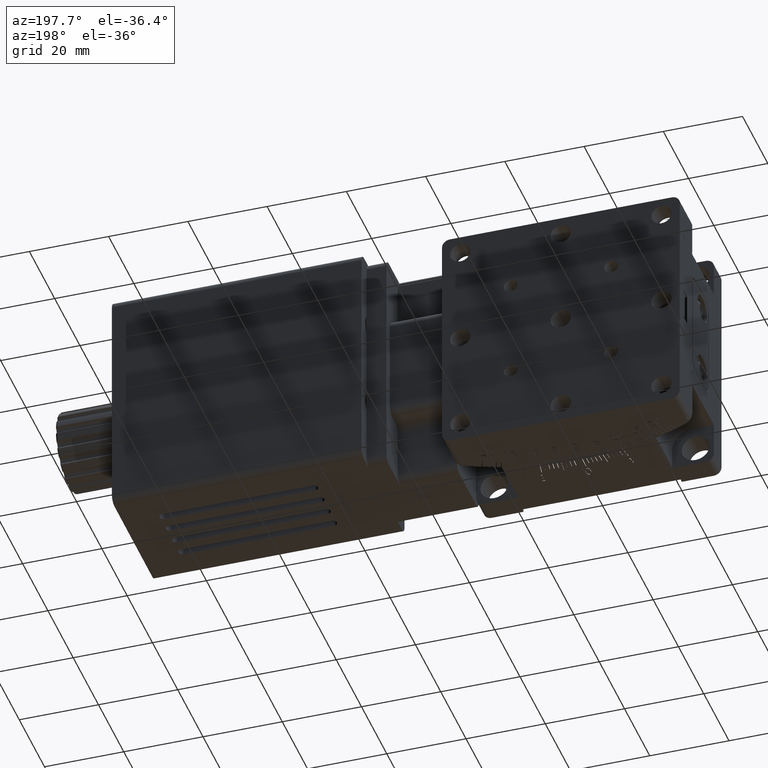
[diagram: clean part render]
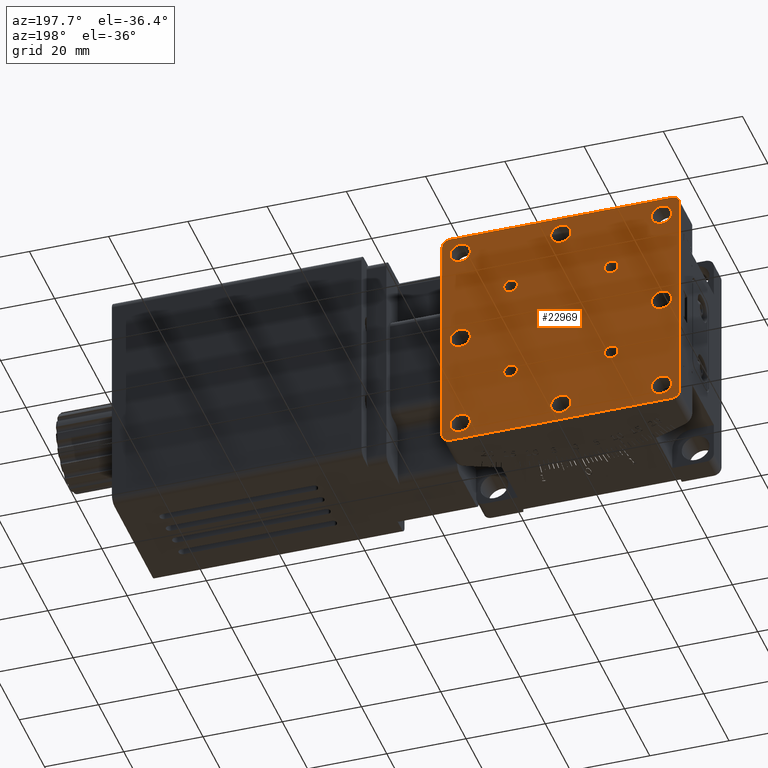
[diagram: same view with one face highlighted and labeled with its STEP entity id]
A machine part, auxiliary view. The second image highlights one B-rep face of the part: STEP entity #22969.
In plain terms, the highlighted planar face has unit normal (0, 1, 0).
Its self-contained STEP definition (entity closure, byte-faithful):
#88 = EDGE_CURVE ( 'NONE', #29572, #2857, #1983, .T. ) ;
#412 = FACE_BOUND ( 'NONE', #26557, .T. ) ;
#419 = CIRCLE ( 'NONE', #34659, 1.727199999999999800 ) ;
#421 = VECTOR ( 'NONE', #31617, 1000.000000000000000 ) ;
#460 = VERTEX_POINT ( 'NONE', #13635 ) ;
#563 = AXIS2_PLACEMENT_3D ( 'NONE', #6026, #26235, #8960 ) ;
#612 = ORIENTED_EDGE ( 'NONE', *, *, #15574, .T. ) ;
#620 = DIRECTION ( 'NONE',  ( 0.0000000000000000000, 0.0000000000000000000, -1.000000000000000000 ) ) ;
#675 = CIRCLE ( 'NONE', #37440, 2.552700000000001500 ) ;
#716 = VERTEX_POINT ( 'NONE', #23742 ) ;
#860 = ORIENTED_EDGE ( 'NONE', *, *, #2494, .F. ) ;
#1067 = CARTESIAN_POINT ( 'NONE',  ( -3.538835890992686500E-014, 32.99999999999978000, -2.552699999999992200 ) ) ;
#1359 = VERTEX_POINT ( 'NONE', #28043 ) ;
#1363 = DIRECTION ( 'NONE',  ( 1.110223024625156300E-016, 1.000000000000000000, 0.0000000000000000000 ) ) ;
#1371 = VERTEX_POINT ( 'NONE', #20749 ) ;
#1500 = VERTEX_POINT ( 'NONE', #32471 ) ;
#1536 = ORIENTED_EDGE ( 'NONE', *, *, #7184, .F. ) ;
#1561 = CIRCLE ( 'NONE', #19196, 1.727199999999999800 ) ;
#1687 = VERTEX_POINT ( 'NONE', #2991 ) ;
#1699 = EDGE_LOOP ( 'NONE', ( #33732, #21307 ) ) ;
#1783 = CARTESIAN_POINT ( 'NONE',  ( -3.538835890992686500E-014, 32.99999999999978000, -25.39999999999999900 ) ) ;
#1797 = FACE_BOUND ( 'NONE', #18883, .T. ) ;
#1808 = EDGE_LOOP ( 'NONE', ( #31700, #860 ) ) ;
#1814 = EDGE_CURVE ( 'NONE', #26791, #29639, #29000, .T. ) ;
#1983 = CIRCLE ( 'NONE', #20546, 1.727199999999999800 ) ;
#2011 = CARTESIAN_POINT ( 'NONE',  ( -25.40000000000003800, 32.99999999999978000, -27.95270000000000000 ) ) ;
#2206 = DIRECTION ( 'NONE',  ( 1.110223024625156300E-016, 1.000000000000000000, 0.0000000000000000000 ) ) ;
#2212 = VERTEX_POINT ( 'NONE', #12634 ) ;
#2277 = CIRCLE ( 'NONE', #3326, 1.727199999999999800 ) ;
#2347 = EDGE_CURVE ( 'NONE', #20053, #37353, #19977, .T. ) ;
#2449 = CARTESIAN_POINT ( 'NONE',  ( -3.538835890992686500E-014, 32.99999999999978000, 22.84730000000001500 ) ) ;
#2494 = EDGE_CURVE ( 'NONE', #33411, #4729, #2277, .T. ) ;
#2570 = EDGE_LOOP ( 'NONE', ( #33635, #31490 ) ) ;
#2857 = VERTEX_POINT ( 'NONE', #33489 ) ;
#2991 = CARTESIAN_POINT ( 'NONE',  ( -25.40000000000003800, 32.99999999999978000, 2.552700000000008600 ) ) ;
#3056 = CIRCLE ( 'NONE', #19877, 1.727199999999999800 ) ;
#3326 = AXIS2_PLACEMENT_3D ( 'NONE', #26836, #9425, #29617 ) ;
#3488 = CIRCLE ( 'NONE', #4226, 2.000000000000001800 ) ;
#3609 = CARTESIAN_POINT ( 'NONE',  ( -25.40000000000003800, 32.99999999999978000, -22.84729999999999700 ) ) ;
#3835 = VERTEX_POINT ( 'NONE', #12062 ) ;
#3933 = DIRECTION ( 'NONE',  ( 0.0000000000000000000, 0.0000000000000000000, -1.000000000000000000 ) ) ;
#4047 = LINE ( 'NONE', #14054, #421 ) ;
#4226 = AXIS2_PLACEMENT_3D ( 'NONE', #21222, #15535, #32941 ) ;
#4703 = EDGE_CURVE ( 'NONE', #24458, #716, #29130, .T. ) ;
#4709 = AXIS2_PLACEMENT_3D ( 'NONE', #27274, #1363, #24268 ) ;
#4729 = VERTEX_POINT ( 'NONE', #30403 ) ;
#4837 = CARTESIAN_POINT ( 'NONE',  ( 25.39999999999995900, 32.99999999999978000, 25.40000000000000600 ) ) ;
#4996 = CARTESIAN_POINT ( 'NONE',  ( -25.40000000000003800, 32.99999999999978000, 6.938893903907226800E-015 ) ) ;
#5090 = ORIENTED_EDGE ( 'NONE', *, *, #8091, .F. ) ;
#5527 = DIRECTION ( 'NONE',  ( 0.0000000000000000000, 0.0000000000000000000, -1.000000000000000000 ) ) ;
#5559 = ORIENTED_EDGE ( 'NONE', *, *, #29957, .T. ) ;
#5717 = ORIENTED_EDGE ( 'NONE', *, *, #35619, .F. ) ;
#6026 = CARTESIAN_POINT ( 'NONE',  ( -25.40000000000003800, 32.99999999999978000, -25.39999999999999900 ) ) ;
#6261 = CIRCLE ( 'NONE', #22372, 2.000000000000001800 ) ;
#6339 = DIRECTION ( 'NONE',  ( 1.110223024625156300E-016, 1.000000000000000000, 0.0000000000000000000 ) ) ;
#6358 = VERTEX_POINT ( 'NONE', #35126 ) ;
#6486 = CARTESIAN_POINT ( 'NONE',  ( -30.00000000000003200, 32.99999999999978000, -27.99999999999998900 ) ) ;
#7184 = EDGE_CURVE ( 'NONE', #15065, #11650, #9143, .T. ) ;
#7203 = CIRCLE ( 'NONE', #33135, 2.552700000000001500 ) ;
#7205 = DIRECTION ( 'NONE',  ( 0.0000000000000000000, 0.0000000000000000000, -1.000000000000000000 ) ) ;
#7323 = DIRECTION ( 'NONE',  ( -1.000000000000000000, 1.110223024625156300E-016, 1.156482317317871500E-016 ) ) ;
#7349 = CIRCLE ( 'NONE', #14636, 2.552700000000001500 ) ;
#7471 = DIRECTION ( 'NONE',  ( 1.110223024625156300E-016, 1.000000000000000000, 0.0000000000000000000 ) ) ;
#7694 = FACE_BOUND ( 'NONE', #1808, .T. ) ;
#7840 = DIRECTION ( 'NONE',  ( 0.0000000000000000000, 0.0000000000000000000, -1.000000000000000000 ) ) ;
#7842 = EDGE_CURVE ( 'NONE', #19292, #1371, #35757, .T. ) ;
#8022 = AXIS2_PLACEMENT_3D ( 'NONE', #31193, #33608, #36649 ) ;
#8091 = EDGE_CURVE ( 'NONE', #16898, #18387, #36672, .T. ) ;
#8219 = CARTESIAN_POINT ( 'NONE',  ( -25.40000000000003800, 32.99999999999978000, -25.39999999999999900 ) ) ;
#8552 = AXIS2_PLACEMENT_3D ( 'NONE', #16855, #31376, #37186 ) ;
#8586 = FACE_BOUND ( 'NONE', #15968, .T. ) ;
#8761 = DIRECTION ( 'NONE',  ( 1.110223024625156300E-016, 1.000000000000000000, 0.0000000000000000000 ) ) ;
#8819 = EDGE_CURVE ( 'NONE', #35889, #1500, #35070, .T. ) ;
#8960 = DIRECTION ( 'NONE',  ( 0.0000000000000000000, 0.0000000000000000000, -1.000000000000000000 ) ) ;
#9059 = ORIENTED_EDGE ( 'NONE', *, *, #2347, .F. ) ;
#9143 = CIRCLE ( 'NONE', #32523, 2.552700000000001500 ) ;
#9380 = DIRECTION ( 'NONE',  ( 1.110223024625156300E-016, 1.000000000000000000, 0.0000000000000000000 ) ) ;
#9389 = EDGE_LOOP ( 'NONE', ( #5717, #22768 ) ) ;
#9425 = DIRECTION ( 'NONE',  ( 1.110223024625156300E-016, 1.000000000000000000, 0.0000000000000000000 ) ) ;
#9792 = DIRECTION ( 'NONE',  ( 1.110223024625156300E-016, 1.000000000000000000, 0.0000000000000000000 ) ) ;
#10296 = ORIENTED_EDGE ( 'NONE', *, *, #28924, .F. ) ;
#10423 = CARTESIAN_POINT ( 'NONE',  ( -3.538835890992686500E-014, 32.99999999999978000, 6.938893903907226800E-015 ) ) ;
#10512 = VERTEX_POINT ( 'NONE', #27038 ) ;
#10600 = LINE ( 'NONE', #33589, #19639 ) ;
#10678 = EDGE_LOOP ( 'NONE', ( #14198, #18447 ) ) ;
#10885 = CARTESIAN_POINT ( 'NONE',  ( 25.39999999999995900, 32.99999999999978000, 22.84730000000000400 ) ) ;
#10890 = DIRECTION ( 'NONE',  ( 1.110223024625156300E-016, 1.000000000000000000, 0.0000000000000000000 ) ) ;
#10894 = CARTESIAN_POINT ( 'NONE',  ( 12.69999999999997400, 32.99999999999978000, -14.42719999999999900 ) ) ;
#10910 = DIRECTION ( 'NONE',  ( 0.0000000000000000000, 0.0000000000000000000, -1.000000000000000000 ) ) ;
#11011 = CARTESIAN_POINT ( 'NONE',  ( -3.538835890992686500E-014, 32.99999999999978000, 25.40000000000001300 ) ) ;
#11214 = EDGE_CURVE ( 'NONE', #1500, #35889, #7349, .T. ) ;
#11337 = AXIS2_PLACEMENT_3D ( 'NONE', #14554, #8761, #14311 ) ;
#11627 = CIRCLE ( 'NONE', #8022, 2.552700000000001500 ) ;
#11650 = VERTEX_POINT ( 'NONE', #18210 ) ;
#11757 = ORIENTED_EDGE ( 'NONE', *, *, #26444, .F. ) ;
#11856 = EDGE_CURVE ( 'NONE', #37353, #20053, #21343, .T. ) ;
#11888 = CARTESIAN_POINT ( 'NONE',  ( 25.39999999999995900, 32.99999999999978000, 6.938893903907226800E-015 ) ) ;
#12062 = CARTESIAN_POINT ( 'NONE',  ( -25.40000000000003800, 32.99999999999978000, -2.552699999999994400 ) ) ;
#12091 = DIRECTION ( 'NONE',  ( 0.0000000000000000000, 0.0000000000000000000, -1.000000000000000000 ) ) ;
#12157 = DIRECTION ( 'NONE',  ( 0.0000000000000000000, 0.0000000000000000000, -1.000000000000000000 ) ) ;
#12270 = AXIS2_PLACEMENT_3D ( 'NONE', #29473, #6339, #15221 ) ;
#12634 = CARTESIAN_POINT ( 'NONE',  ( 27.99999999999996400, 32.99999999999978000, 30.00000000000000700 ) ) ;
#12658 = CIRCLE ( 'NONE', #11337, 2.552700000000001500 ) ;
#12753 = ORIENTED_EDGE ( 'NONE', *, *, #24673, .F. ) ;
#12812 = AXIS2_PLACEMENT_3D ( 'NONE', #13347, #36820, #22311 ) ;
#12906 = CARTESIAN_POINT ( 'NONE',  ( 12.69999999999997400, 32.99999999999978000, -12.69999999999999900 ) ) ;
#13340 = PLANE ( 'NONE',  #34706 ) ;
#13347 = CARTESIAN_POINT ( 'NONE',  ( -3.538835890992686500E-014, 32.99999999999978000, 6.938893903907226800E-015 ) ) ;
#13449 = DIRECTION ( 'NONE',  ( 1.110223024625156300E-016, 1.000000000000000000, 0.0000000000000000000 ) ) ;
#13635 = CARTESIAN_POINT ( 'NONE',  ( 12.69999999999997400, 32.99999999999978000, -10.97279999999999900 ) ) ;
#13800 = CARTESIAN_POINT ( 'NONE',  ( -28.00000000000003200, 32.99999999999978000, -27.99999999999998900 ) ) ;
#13807 = CARTESIAN_POINT ( 'NONE',  ( -3.614506370819527200E-014, 32.99999999999978000, -22.84730000000000100 ) ) ;
#13890 = EDGE_CURVE ( 'NONE', #460, #37424, #419, .T. ) ;
#14054 = CARTESIAN_POINT ( 'NONE',  ( 29.99999999999996400, 32.99999999999978000, 30.00000000000000700 ) ) ;
#14094 = ORIENTED_EDGE ( 'NONE', *, *, #30941, .T. ) ;
#14198 = ORIENTED_EDGE ( 'NONE', *, *, #30831, .F. ) ;
#14311 = DIRECTION ( 'NONE',  ( 0.0000000000000000000, 0.0000000000000000000, -1.000000000000000000 ) ) ;
#14502 = EDGE_CURVE ( 'NONE', #35919, #18950, #27100, .T. ) ;
#14554 = CARTESIAN_POINT ( 'NONE',  ( -25.40000000000003800, 32.99999999999978000, 6.938893903907226800E-015 ) ) ;
#14636 = AXIS2_PLACEMENT_3D ( 'NONE', #18631, #27589, #30618 ) ;
#14638 = AXIS2_PLACEMENT_3D ( 'NONE', #31365, #34383, #31235 ) ;
#14803 = CARTESIAN_POINT ( 'NONE',  ( 12.69999999999998200, 32.99999999999978000, 12.70000000000000600 ) ) ;
#14808 = LINE ( 'NONE', #37466, #17108 ) ;
#14837 = EDGE_CURVE ( 'NONE', #1359, #24458, #6261, .T. ) ;
#14991 = AXIS2_PLACEMENT_3D ( 'NONE', #26308, #26448, #29350 ) ;
#15065 = VERTEX_POINT ( 'NONE', #23631 ) ;
#15100 = CARTESIAN_POINT ( 'NONE',  ( -3.538835890992686500E-014, 32.99999999999978000, -27.95269999999999700 ) ) ;
#15221 = DIRECTION ( 'NONE',  ( 0.0000000000000000000, 0.0000000000000000000, -1.000000000000000000 ) ) ;
#15265 = EDGE_LOOP ( 'NONE', ( #37461, #12753 ) ) ;
#15289 = CIRCLE ( 'NONE', #12812, 2.552699999999999300 ) ;
#15341 = DIRECTION ( 'NONE',  ( 1.110223024625156300E-016, 1.000000000000000000, 0.0000000000000000000 ) ) ;
#15535 = DIRECTION ( 'NONE',  ( 1.110223024625156300E-016, 1.000000000000000000, 0.0000000000000000000 ) ) ;
#15574 = EDGE_CURVE ( 'NONE', #6358, #2212, #14808, .T. ) ;
#15841 = FACE_BOUND ( 'NONE', #15265, .T. ) ;
#15968 = EDGE_LOOP ( 'NONE', ( #9059, #17617 ) ) ;
#16137 = AXIS2_PLACEMENT_3D ( 'NONE', #26660, #9380, #620 ) ;
#16198 = EDGE_CURVE ( 'NONE', #2212, #16999, #31522, .T. ) ;
#16364 = ORIENTED_EDGE ( 'NONE', *, *, #4703, .T. ) ;
#16606 = CIRCLE ( 'NONE', #12270, 2.552699999999999300 ) ;
#16696 = EDGE_CURVE ( 'NONE', #20261, #35775, #16606, .T. ) ;
#16729 = FACE_BOUND ( 'NONE', #2570, .T. ) ;
#16845 = EDGE_CURVE ( 'NONE', #18950, #35919, #37356, .T. ) ;
#16855 = CARTESIAN_POINT ( 'NONE',  ( -3.538835890992686500E-014, 32.99999999999978000, -25.39999999999999900 ) ) ;
#16898 = VERTEX_POINT ( 'NONE', #2011 ) ;
#16999 = VERTEX_POINT ( 'NONE', #36250 ) ;
#17059 = CIRCLE ( 'NONE', #29925, 1.727199999999999800 ) ;
#17071 = EDGE_LOOP ( 'NONE', ( #5090, #17986 ) ) ;
#17106 = CARTESIAN_POINT ( 'NONE',  ( 12.69999999999998200, 32.99999999999978000, 14.42720000000000600 ) ) ;
#17108 = VECTOR ( 'NONE', #28854, 1000.000000000000000 ) ;
#17133 = CIRCLE ( 'NONE', #4709, 2.552700000000001500 ) ;
#17332 = CARTESIAN_POINT ( 'NONE',  ( 29.99999999999996100, 32.99999999999978000, -27.99999999999998200 ) ) ;
#17409 = VECTOR ( 'NONE', #35709, 1000.000000000000000 ) ;
#17617 = ORIENTED_EDGE ( 'NONE', *, *, #11856, .F. ) ;
#17986 = ORIENTED_EDGE ( 'NONE', *, *, #30395, .F. ) ;
#18210 = CARTESIAN_POINT ( 'NONE',  ( -25.40000000000003800, 32.99999999999978000, 22.84730000000001100 ) ) ;
#18252 = CARTESIAN_POINT ( 'NONE',  ( -12.70000000000001700, 32.99999999999978000, -12.69999999999999600 ) ) ;
#18283 = DIRECTION ( 'NONE',  ( 1.110223024625156300E-016, 1.000000000000000000, 0.0000000000000000000 ) ) ;
#18337 = CARTESIAN_POINT ( 'NONE',  ( 12.69999999999997400, 32.99999999999978000, -12.69999999999999900 ) ) ;
#18387 = VERTEX_POINT ( 'NONE', #3609 ) ;
#18447 = ORIENTED_EDGE ( 'NONE', *, *, #13890, .F. ) ;
#18631 = CARTESIAN_POINT ( 'NONE',  ( 25.39999999999995200, 32.99999999999978000, -25.40000000000000600 ) ) ;
#18883 = EDGE_LOOP ( 'NONE', ( #23567, #28010 ) ) ;
#18950 = VERTEX_POINT ( 'NONE', #15100 ) ;
#18973 = CARTESIAN_POINT ( 'NONE',  ( 27.99999999999996100, 32.99999999999978000, -27.99999999999999600 ) ) ;
#19112 = CARTESIAN_POINT ( 'NONE',  ( -3.614506370819527200E-014, 32.99999999999978000, 27.95270000000001100 ) ) ;
#19196 = AXIS2_PLACEMENT_3D ( 'NONE', #18337, #32861, #7205 ) ;
#19242 = CARTESIAN_POINT ( 'NONE',  ( -3.614506370819527200E-014, 32.99999999999978000, 2.552700000000006400 ) ) ;
#19292 = VERTEX_POINT ( 'NONE', #17332 ) ;
#19457 = VERTEX_POINT ( 'NONE', #10885 ) ;
#19639 = VECTOR ( 'NONE', #7323, 1000.000000000000000 ) ;
#19877 = AXIS2_PLACEMENT_3D ( 'NONE', #24418, #36024, #24292 ) ;
#19977 = CIRCLE ( 'NONE', #14991, 2.552699999999998000 ) ;
#19994 = CARTESIAN_POINT ( 'NONE',  ( 25.39999999999995900, 32.99999999999978000, -2.552699999999994400 ) ) ;
#20053 = VERTEX_POINT ( 'NONE', #2449 ) ;
#20261 = VERTEX_POINT ( 'NONE', #1067 ) ;
#20309 = ORIENTED_EDGE ( 'NONE', *, *, #1814, .F. ) ;
#20546 = AXIS2_PLACEMENT_3D ( 'NONE', #26630, #33078, #33335 ) ;
#20749 = CARTESIAN_POINT ( 'NONE',  ( 27.99999999999996100, 32.99999999999978000, -30.00000000000000000 ) ) ;
#21222 = CARTESIAN_POINT ( 'NONE',  ( -28.00000000000003200, 32.99999999999978000, 28.00000000000000400 ) ) ;
#21307 = ORIENTED_EDGE ( 'NONE', *, *, #21381, .F. ) ;
#21343 = CIRCLE ( 'NONE', #25346, 2.552699999999998000 ) ;
#21381 = EDGE_CURVE ( 'NONE', #29907, #10512, #26454, .T. ) ;
#21707 = FACE_BOUND ( 'NONE', #17071, .T. ) ;
#21995 = DIRECTION ( 'NONE',  ( 0.0000000000000000000, 0.0000000000000000000, -1.000000000000000000 ) ) ;
#21998 = AXIS2_PLACEMENT_3D ( 'NONE', #14803, #35003, #12157 ) ;
#22291 = DIRECTION ( 'NONE',  ( 0.0000000000000000000, 0.0000000000000000000, -1.000000000000000000 ) ) ;
#22311 = DIRECTION ( 'NONE',  ( 0.0000000000000000000, 0.0000000000000000000, -1.000000000000000000 ) ) ;
#22372 = AXIS2_PLACEMENT_3D ( 'NONE', #13800, #25430, #25539 ) ;
#22768 = ORIENTED_EDGE ( 'NONE', *, *, #88, .F. ) ;
#22969 = ADVANCED_FACE ( 'NONE', ( #29849, #16729, #15841, #8586, #412, #37066, #29353, #21707, #1797, #31652, #7694, #27092, #27566, #31619 ), #13340, .T. ) ;
#23041 = CIRCLE ( 'NONE', #21998, 1.727199999999999800 ) ;
#23171 = CARTESIAN_POINT ( 'NONE',  ( -12.70000000000001700, 32.99999999999978000, 14.42720000000001000 ) ) ;
#23179 = EDGE_CURVE ( 'NONE', #10512, #29907, #23041, .T. ) ;
#23270 = ORIENTED_EDGE ( 'NONE', *, *, #7842, .T. ) ;
#23431 = CIRCLE ( 'NONE', #31832, 2.552700000000001500 ) ;
#23567 = ORIENTED_EDGE ( 'NONE', *, *, #11214, .F. ) ;
#23631 = CARTESIAN_POINT ( 'NONE',  ( -25.40000000000003800, 32.99999999999978000, 27.95270000000001400 ) ) ;
#23742 = CARTESIAN_POINT ( 'NONE',  ( -30.00000000000003200, 32.99999999999978000, 28.00000000000000400 ) ) ;
#23800 = ORIENTED_EDGE ( 'NONE', *, *, #36945, .F. ) ;
#23885 = EDGE_CURVE ( 'NONE', #11650, #15065, #17133, .T. ) ;
#23967 = CARTESIAN_POINT ( 'NONE',  ( -12.70000000000001700, 32.99999999999978000, -10.97279999999999600 ) ) ;
#24094 = CARTESIAN_POINT ( 'NONE',  ( 25.39999999999995900, 32.99999999999978000, 2.552700000000008600 ) ) ;
#24141 = EDGE_CURVE ( 'NONE', #3835, #1687, #23431, .T. ) ;
#24175 = ORIENTED_EDGE ( 'NONE', *, *, #23885, .F. ) ;
#24268 = DIRECTION ( 'NONE',  ( 0.0000000000000000000, 0.0000000000000000000, -1.000000000000000000 ) ) ;
#24292 = DIRECTION ( 'NONE',  ( 0.0000000000000000000, 0.0000000000000000000, -1.000000000000000000 ) ) ;
#24418 = CARTESIAN_POINT ( 'NONE',  ( -12.70000000000001700, 32.99999999999978000, 12.70000000000001000 ) ) ;
#24458 = VERTEX_POINT ( 'NONE', #6486 ) ;
#24673 = EDGE_CURVE ( 'NONE', #35775, #20261, #15289, .T. ) ;
#24898 = DIRECTION ( 'NONE',  ( 1.110223024625156300E-016, 1.000000000000000000, 0.0000000000000000000 ) ) ;
#24911 = DIRECTION ( 'NONE',  ( 1.110223024625156300E-016, 1.000000000000000000, 0.0000000000000000000 ) ) ;
#24979 = CARTESIAN_POINT ( 'NONE',  ( 25.39999999999995900, 32.99999999999978000, 27.95270000000000700 ) ) ;
#25019 = EDGE_LOOP ( 'NONE', ( #612, #36940, #5559, #23270, #14094, #35430, #16364, #34151 ) ) ;
#25346 = AXIS2_PLACEMENT_3D ( 'NONE', #11011, #10890, #31097 ) ;
#25430 = DIRECTION ( 'NONE',  ( 1.110223024625156300E-016, 1.000000000000000000, 0.0000000000000000000 ) ) ;
#25539 = DIRECTION ( 'NONE',  ( 0.0000000000000000000, 0.0000000000000000000, -1.000000000000000000 ) ) ;
#25612 = DIRECTION ( 'NONE',  ( 0.0000000000000000000, 0.0000000000000000000, -1.000000000000000000 ) ) ;
#25766 = VERTEX_POINT ( 'NONE', #24979 ) ;
#25943 = EDGE_CURVE ( 'NONE', #1687, #3835, #12658, .T. ) ;
#26235 = DIRECTION ( 'NONE',  ( 1.110223024625156300E-016, 1.000000000000000000, 0.0000000000000000000 ) ) ;
#26308 = CARTESIAN_POINT ( 'NONE',  ( -3.538835890992686500E-014, 32.99999999999978000, 25.40000000000001300 ) ) ;
#26334 = DIRECTION ( 'NONE',  ( 1.110223024625156300E-016, 1.000000000000000000, 0.0000000000000000000 ) ) ;
#26444 = EDGE_CURVE ( 'NONE', #29639, #26791, #7203, .T. ) ;
#26448 = DIRECTION ( 'NONE',  ( 1.110223024625156300E-016, 1.000000000000000000, 0.0000000000000000000 ) ) ;
#26454 = CIRCLE ( 'NONE', #16137, 1.727199999999999800 ) ;
#26557 = EDGE_LOOP ( 'NONE', ( #32305, #29878 ) ) ;
#26630 = CARTESIAN_POINT ( 'NONE',  ( -12.70000000000001700, 32.99999999999978000, -12.69999999999999600 ) ) ;
#26660 = CARTESIAN_POINT ( 'NONE',  ( 12.69999999999998200, 32.99999999999978000, 12.70000000000000600 ) ) ;
#26791 = VERTEX_POINT ( 'NONE', #19994 ) ;
#26836 = CARTESIAN_POINT ( 'NONE',  ( -12.70000000000001700, 32.99999999999978000, 12.70000000000001000 ) ) ;
#27038 = CARTESIAN_POINT ( 'NONE',  ( 12.69999999999998200, 32.99999999999978000, 10.97280000000000700 ) ) ;
#27092 = FACE_BOUND ( 'NONE', #9389, .T. ) ;
#27100 = CIRCLE ( 'NONE', #8552, 2.552699999999998000 ) ;
#27274 = CARTESIAN_POINT ( 'NONE',  ( -25.40000000000003800, 32.99999999999978000, 25.40000000000001300 ) ) ;
#27566 = FACE_BOUND ( 'NONE', #10678, .T. ) ;
#27589 = DIRECTION ( 'NONE',  ( 1.110223024625156300E-016, 1.000000000000000000, 0.0000000000000000000 ) ) ;
#27792 = DIRECTION ( 'NONE',  ( 0.0000000000000000000, 0.0000000000000000000, -1.000000000000000000 ) ) ;
#27969 = AXIS2_PLACEMENT_3D ( 'NONE', #33181, #26334, #12091 ) ;
#28010 = ORIENTED_EDGE ( 'NONE', *, *, #8819, .F. ) ;
#28043 = CARTESIAN_POINT ( 'NONE',  ( -28.00000000000003600, 32.99999999999978000, -29.99999999999999300 ) ) ;
#28217 = EDGE_CURVE ( 'NONE', #4729, #33411, #3056, .T. ) ;
#28421 = DIRECTION ( 'NONE',  ( 1.110223024625156300E-016, 1.000000000000000000, 0.0000000000000000000 ) ) ;
#28854 = DIRECTION ( 'NONE',  ( 1.000000000000000000, -1.110223024625156300E-016, 0.0000000000000000000 ) ) ;
#28918 = CIRCLE ( 'NONE', #30326, 2.552700000000001500 ) ;
#28924 = EDGE_CURVE ( 'NONE', #19457, #25766, #11627, .T. ) ;
#29000 = CIRCLE ( 'NONE', #30001, 2.552700000000001500 ) ;
#29130 = LINE ( 'NONE', #29903, #17409 ) ;
#29343 = CARTESIAN_POINT ( 'NONE',  ( 25.39999999999995900, 32.99999999999978000, 6.938893903907226800E-015 ) ) ;
#29350 = DIRECTION ( 'NONE',  ( 0.0000000000000000000, 0.0000000000000000000, -1.000000000000000000 ) ) ;
#29353 = FACE_BOUND ( 'NONE', #34030, .T. ) ;
#29473 = CARTESIAN_POINT ( 'NONE',  ( -3.538835890992686500E-014, 32.99999999999978000, 6.938893903907226800E-015 ) ) ;
#29572 = VERTEX_POINT ( 'NONE', #23967 ) ;
#29617 = DIRECTION ( 'NONE',  ( 0.0000000000000000000, 0.0000000000000000000, -1.000000000000000000 ) ) ;
#29639 = VERTEX_POINT ( 'NONE', #24094 ) ;
#29849 = FACE_BOUND ( 'NONE', #37425, .T. ) ;
#29878 = ORIENTED_EDGE ( 'NONE', *, *, #14502, .F. ) ;
#29891 = EDGE_LOOP ( 'NONE', ( #10296, #23800 ) ) ;
#29903 = CARTESIAN_POINT ( 'NONE',  ( -30.00000000000003200, 32.99999999999978000, 30.00000000000000700 ) ) ;
#29907 = VERTEX_POINT ( 'NONE', #17106 ) ;
#29925 = AXIS2_PLACEMENT_3D ( 'NONE', #18252, #9792, #32904 ) ;
#29957 = EDGE_CURVE ( 'NONE', #16999, #19292, #4047, .T. ) ;
#30001 = AXIS2_PLACEMENT_3D ( 'NONE', #11888, #24911, #27792 ) ;
#30153 = DIRECTION ( 'NONE',  ( 0.0000000000000000000, 0.0000000000000000000, -1.000000000000000000 ) ) ;
#30326 = AXIS2_PLACEMENT_3D ( 'NONE', #8219, #28421, #5527 ) ;
#30395 = EDGE_CURVE ( 'NONE', #18387, #16898, #28918, .T. ) ;
#30403 = CARTESIAN_POINT ( 'NONE',  ( -12.70000000000001700, 32.99999999999978000, 10.97280000000001000 ) ) ;
#30618 = DIRECTION ( 'NONE',  ( 0.0000000000000000000, 0.0000000000000000000, -1.000000000000000000 ) ) ;
#30831 = EDGE_CURVE ( 'NONE', #37424, #460, #1561, .T. ) ;
#30879 = DIRECTION ( 'NONE',  ( 1.110223024625156300E-016, 1.000000000000000000, 0.0000000000000000000 ) ) ;
#30941 = EDGE_CURVE ( 'NONE', #1371, #1359, #10600, .T. ) ;
#31097 = DIRECTION ( 'NONE',  ( 0.0000000000000000000, 0.0000000000000000000, -1.000000000000000000 ) ) ;
#31193 = CARTESIAN_POINT ( 'NONE',  ( 25.39999999999995900, 32.99999999999978000, 25.40000000000000600 ) ) ;
#31235 = DIRECTION ( 'NONE',  ( 0.0000000000000000000, 0.0000000000000000000, -1.000000000000000000 ) ) ;
#31365 = CARTESIAN_POINT ( 'NONE',  ( 25.39999999999995200, 32.99999999999978000, -25.40000000000000600 ) ) ;
#31376 = DIRECTION ( 'NONE',  ( 1.110223024625156300E-016, 1.000000000000000000, 0.0000000000000000000 ) ) ;
#31490 = ORIENTED_EDGE ( 'NONE', *, *, #25943, .F. ) ;
#31522 = CIRCLE ( 'NONE', #27969, 2.000000000000001800 ) ;
#31617 = DIRECTION ( 'NONE',  ( -5.782411586589357400E-017, 6.419766481290785300E-033, -1.000000000000000000 ) ) ;
#31619 = FACE_OUTER_BOUND ( 'NONE', #25019, .T. ) ;
#31652 = FACE_BOUND ( 'NONE', #1699, .T. ) ;
#31700 = ORIENTED_EDGE ( 'NONE', *, *, #28217, .F. ) ;
#31832 = AXIS2_PLACEMENT_3D ( 'NONE', #4996, #2206, #25612 ) ;
#32286 = AXIS2_PLACEMENT_3D ( 'NONE', #18973, #7471, #7840 ) ;
#32305 = ORIENTED_EDGE ( 'NONE', *, *, #16845, .F. ) ;
#32471 = CARTESIAN_POINT ( 'NONE',  ( 25.39999999999995200, 32.99999999999978000, -27.95270000000000700 ) ) ;
#32523 = AXIS2_PLACEMENT_3D ( 'NONE', #35575, #18283, #30153 ) ;
#32861 = DIRECTION ( 'NONE',  ( 1.110223024625156300E-016, 1.000000000000000000, 0.0000000000000000000 ) ) ;
#32904 = DIRECTION ( 'NONE',  ( 0.0000000000000000000, 0.0000000000000000000, -1.000000000000000000 ) ) ;
#32941 = DIRECTION ( 'NONE',  ( 0.0000000000000000000, 0.0000000000000000000, -1.000000000000000000 ) ) ;
#33078 = DIRECTION ( 'NONE',  ( 1.110223024625156300E-016, 1.000000000000000000, 0.0000000000000000000 ) ) ;
#33135 = AXIS2_PLACEMENT_3D ( 'NONE', #29343, #15341, #3933 ) ;
#33181 = CARTESIAN_POINT ( 'NONE',  ( 27.99999999999996400, 32.99999999999978000, 28.00000000000000400 ) ) ;
#33335 = DIRECTION ( 'NONE',  ( 0.0000000000000000000, 0.0000000000000000000, -1.000000000000000000 ) ) ;
#33411 = VERTEX_POINT ( 'NONE', #23171 ) ;
#33489 = CARTESIAN_POINT ( 'NONE',  ( -12.70000000000001700, 32.99999999999978000, -14.42719999999999600 ) ) ;
#33589 = CARTESIAN_POINT ( 'NONE',  ( 29.99999999999996100, 32.99999999999978000, -30.00000000000000000 ) ) ;
#33608 = DIRECTION ( 'NONE',  ( 1.110223024625156300E-016, 1.000000000000000000, 0.0000000000000000000 ) ) ;
#33635 = ORIENTED_EDGE ( 'NONE', *, *, #24141, .F. ) ;
#33732 = ORIENTED_EDGE ( 'NONE', *, *, #23179, .F. ) ;
#33779 = DIRECTION ( 'NONE',  ( 0.0000000000000000000, 0.0000000000000000000, -1.000000000000000000 ) ) ;
#34018 = DIRECTION ( 'NONE',  ( 1.110223024625156300E-016, 1.000000000000000000, 0.0000000000000000000 ) ) ;
#34030 = EDGE_LOOP ( 'NONE', ( #24175, #1536 ) ) ;
#34151 = ORIENTED_EDGE ( 'NONE', *, *, #35139, .T. ) ;
#34383 = DIRECTION ( 'NONE',  ( 1.110223024625156300E-016, 1.000000000000000000, 0.0000000000000000000 ) ) ;
#34659 = AXIS2_PLACEMENT_3D ( 'NONE', #12906, #24898, #21995 ) ;
#34706 = AXIS2_PLACEMENT_3D ( 'NONE', #10423, #34018, #10910 ) ;
#35003 = DIRECTION ( 'NONE',  ( 1.110223024625156300E-016, 1.000000000000000000, 0.0000000000000000000 ) ) ;
#35070 = CIRCLE ( 'NONE', #14638, 2.552700000000001500 ) ;
#35126 = CARTESIAN_POINT ( 'NONE',  ( -28.00000000000003200, 32.99999999999978000, 30.00000000000000700 ) ) ;
#35139 = EDGE_CURVE ( 'NONE', #716, #6358, #3488, .T. ) ;
#35430 = ORIENTED_EDGE ( 'NONE', *, *, #14837, .T. ) ;
#35575 = CARTESIAN_POINT ( 'NONE',  ( -25.40000000000003800, 32.99999999999978000, 25.40000000000001300 ) ) ;
#35619 = EDGE_CURVE ( 'NONE', #2857, #29572, #17059, .T. ) ;
#35709 = DIRECTION ( 'NONE',  ( 0.0000000000000000000, 0.0000000000000000000, 1.000000000000000000 ) ) ;
#35757 = CIRCLE ( 'NONE', #32286, 2.000000000000001800 ) ;
#35775 = VERTEX_POINT ( 'NONE', #19242 ) ;
#35889 = VERTEX_POINT ( 'NONE', #37412 ) ;
#35919 = VERTEX_POINT ( 'NONE', #13807 ) ;
#36024 = DIRECTION ( 'NONE',  ( 1.110223024625156300E-016, 1.000000000000000000, 0.0000000000000000000 ) ) ;
#36250 = CARTESIAN_POINT ( 'NONE',  ( 29.99999999999996400, 32.99999999999978000, 28.00000000000000400 ) ) ;
#36649 = DIRECTION ( 'NONE',  ( 0.0000000000000000000, 0.0000000000000000000, -1.000000000000000000 ) ) ;
#36672 = CIRCLE ( 'NONE', #563, 2.552700000000001500 ) ;
#36781 = AXIS2_PLACEMENT_3D ( 'NONE', #1783, #13449, #22291 ) ;
#36820 = DIRECTION ( 'NONE',  ( 1.110223024625156300E-016, 1.000000000000000000, 0.0000000000000000000 ) ) ;
#36940 = ORIENTED_EDGE ( 'NONE', *, *, #16198, .T. ) ;
#36945 = EDGE_CURVE ( 'NONE', #25766, #19457, #675, .T. ) ;
#37066 = FACE_BOUND ( 'NONE', #29891, .T. ) ;
#37186 = DIRECTION ( 'NONE',  ( 0.0000000000000000000, 0.0000000000000000000, -1.000000000000000000 ) ) ;
#37353 = VERTEX_POINT ( 'NONE', #19112 ) ;
#37356 = CIRCLE ( 'NONE', #36781, 2.552699999999998000 ) ;
#37412 = CARTESIAN_POINT ( 'NONE',  ( 25.39999999999995200, 32.99999999999978000, -22.84730000000000400 ) ) ;
#37424 = VERTEX_POINT ( 'NONE', #10894 ) ;
#37425 = EDGE_LOOP ( 'NONE', ( #20309, #11757 ) ) ;
#37440 = AXIS2_PLACEMENT_3D ( 'NONE', #4837, #30879, #33779 ) ;
#37461 = ORIENTED_EDGE ( 'NONE', *, *, #16696, .F. ) ;
#37466 = CARTESIAN_POINT ( 'NONE',  ( 29.99999999999996400, 32.99999999999978000, 30.00000000000000700 ) ) ;